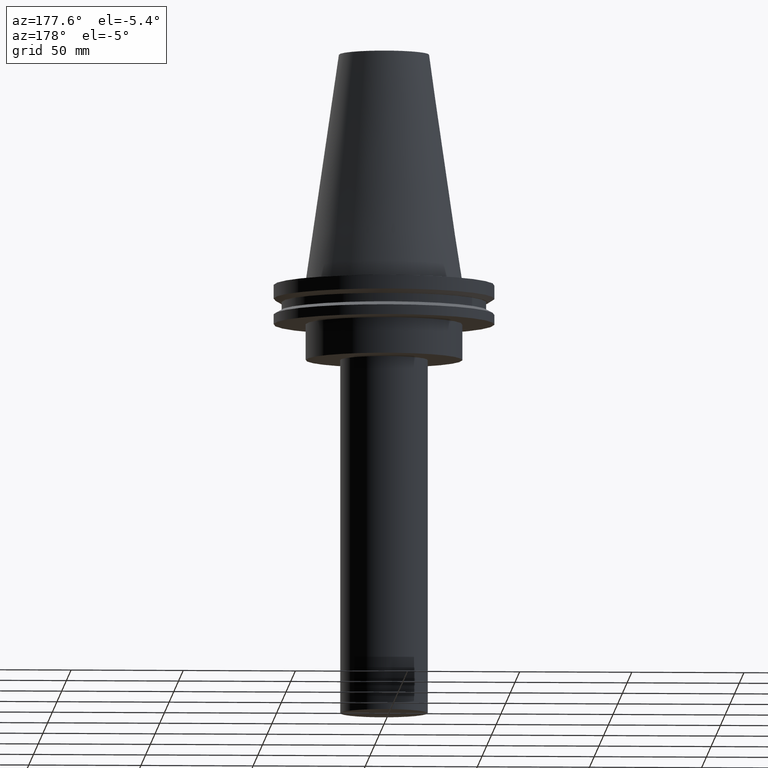
[diagram: clean part render]
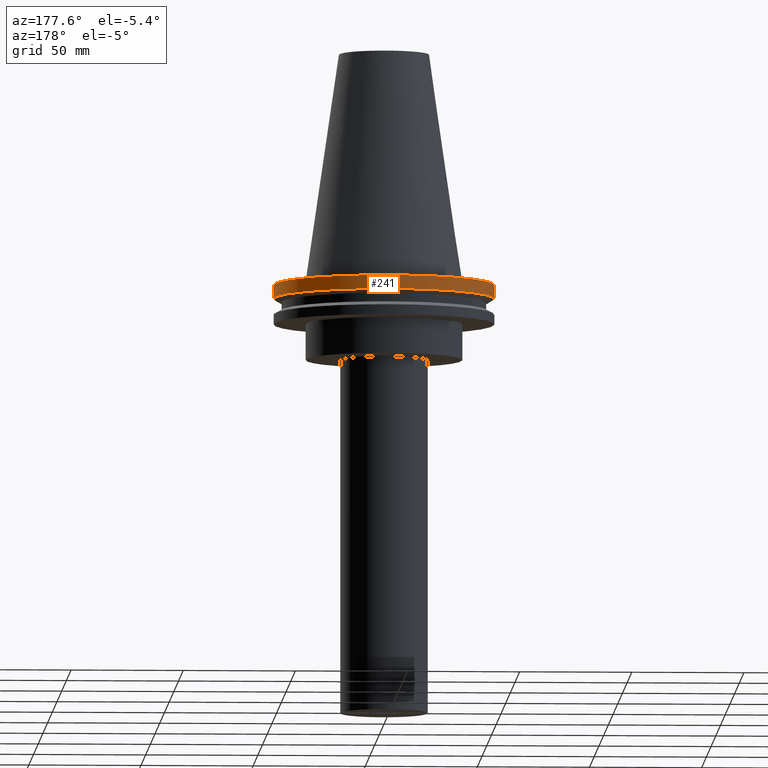
[diagram: same view with one face highlighted and labeled with its STEP entity id]
A machine part, auxiliary view. The second image highlights one B-rep face of the part: STEP entity #241.
In plain terms, the highlighted cylindrical surface (bore or boss wall) has radius 49.215 mm, axis along (-0, -0, 1).
Its self-contained STEP definition (entity closure, byte-faithful):
#23 = DIRECTION ( 'NONE',  ( 1.000000000000000000, 0.000000000000000000, 0.000000000000000000 ) ) ;
#35 = ORIENTED_EDGE ( 'NONE', *, *, #274, .T. ) ;
#38 = FACE_OUTER_BOUND ( 'NONE', #138, .T. ) ;
#62 = DIRECTION ( 'NONE',  ( 1.000000000000000000, 0.000000000000000000, 0.000000000000000000 ) ) ;
#87 = CARTESIAN_POINT ( 'NONE',  ( 0.000000000000000000, 0.000000000000000000, -7.602389855251287187 ) ) ;
#94 = CARTESIAN_POINT ( 'NONE',  ( 0.000000000000000000, 0.000000000000000000, -1.499999999999987566 ) ) ;
#102 = DIRECTION ( 'NONE',  ( 1.000000000000000000, 0.000000000000000000, 0.000000000000000000 ) ) ;
#110 = CARTESIAN_POINT ( 'NONE',  ( 0.000000000000000000, 0.000000000000000000, 101.5999999999999943 ) ) ;
#119 = CIRCLE ( 'NONE', #379, 49.21500000000000341 ) ;
#129 = CYLINDRICAL_SURFACE ( 'NONE', #133, 49.21499999999999631 ) ;
#133 = AXIS2_PLACEMENT_3D ( 'NONE', #110, #370, #102 ) ;
#138 = EDGE_LOOP ( 'NONE', ( #163 ) ) ;
#141 = VERTEX_POINT ( 'NONE', #256 ) ;
#143 = VERTEX_POINT ( 'NONE', #149 ) ;
#149 = CARTESIAN_POINT ( 'NONE',  ( 49.21499999999999631, 0.000000000000000000, -1.499999999999987566 ) ) ;
#163 = ORIENTED_EDGE ( 'NONE', *, *, #290, .F. ) ;
#187 = CIRCLE ( 'NONE', #386, 49.21499999999999631 ) ;
#217 = EDGE_LOOP ( 'NONE', ( #35 ) ) ;
#241 = ADVANCED_FACE ( 'NONE', ( #38, #251 ), #129, .T. ) ;
#251 = FACE_OUTER_BOUND ( 'NONE', #217, .T. ) ;
#256 = CARTESIAN_POINT ( 'NONE',  ( 49.21500000000000341, 0.000000000000000000, -7.602389855251287187 ) ) ;
#274 = EDGE_CURVE ( 'NONE', #141, #141, #119, .T. ) ;
#290 = EDGE_CURVE ( 'NONE', #143, #143, #187, .T. ) ;
#303 = DIRECTION ( 'NONE',  ( -0.000000000000000000, -0.000000000000000000, 1.000000000000000000 ) ) ;
#362 = DIRECTION ( 'NONE',  ( -0.000000000000000000, -0.000000000000000000, 1.000000000000000000 ) ) ;
#370 = DIRECTION ( 'NONE',  ( -0.000000000000000000, -0.000000000000000000, 1.000000000000000000 ) ) ;
#379 = AXIS2_PLACEMENT_3D ( 'NONE', #87, #303, #62 ) ;
#386 = AXIS2_PLACEMENT_3D ( 'NONE', #94, #362, #23 ) ;